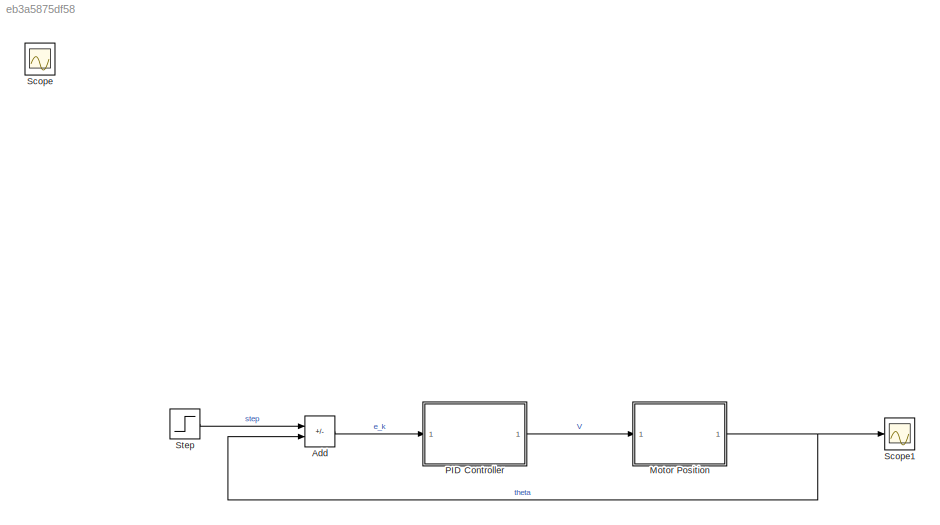
MODEL slx_eb3a5875df58
KIND model
CONFIG AbsTol = auto
CONFIG EnableMultiTasking = off
CONFIG FixedStep = auto
CONFIG MaxStep = auto
CONFIG MinStep = auto
CONFIG RelTol = 1e-3
CONFIG SampleTimeConstraint = Unconstrained
CONFIG SolverName = VariableStepAuto
CONFIG StartTime = 0.0
CONFIG StopTime = 0.2
BLOCK [Sum] Add
  IconShape = rectangular
  Inputs = +-
  Ports = [2, 1]
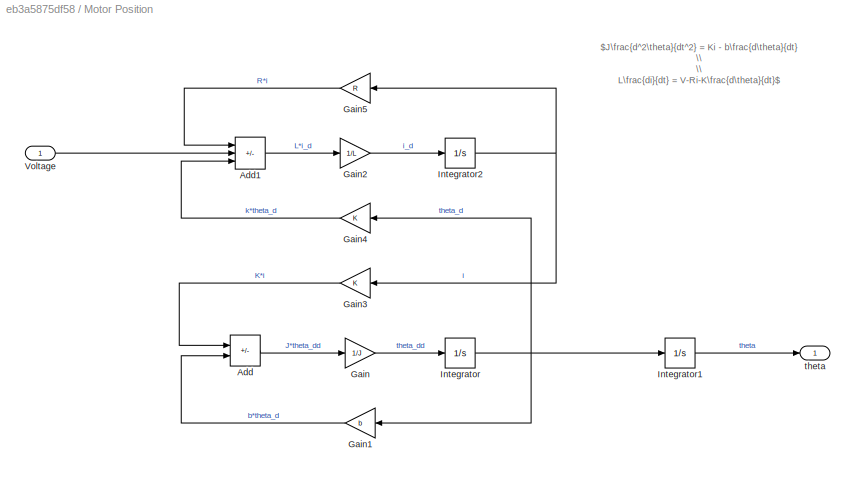
BLOCK [SubSystem] Motor Position
  Ports = [1, 1]
  RequestExecContextInheritance = off
BLOCK [Sum] Motor Position/Add
  IconShape = rectangular
  Inputs = +-
  Ports = [2, 1]
BLOCK [Sum] Motor Position/Add1
  IconShape = rectangular
  Inputs = -+-
  Ports = [3, 1]
BLOCK [Gain] Motor Position/Gain
  Gain = 1/J
BLOCK [Gain] Motor Position/Gain1
  Gain = b
  NameLocation = top
BLOCK [Gain] Motor Position/Gain2
  Gain = 1/L
BLOCK [Gain] Motor Position/Gain3
  Gain = K
  NameLocation = top
BLOCK [Gain] Motor Position/Gain4
  Gain = K
  NameLocation = top
BLOCK [Gain] Motor Position/Gain5
  Gain = R
  NameLocation = top
BLOCK [Integrator] Motor Position/Integrator
  Ports = [1, 1]
BLOCK [Integrator] Motor Position/Integrator1
  Ports = [1, 1]
BLOCK [Integrator] Motor Position/Integrator2
  Ports = [1, 1]
BLOCK [Inport] Motor Position/Voltage
BLOCK [Outport] Motor Position/theta
BLOCK [ModelReference] PID Controller
  ModelNameDialog = PID_Controller
  ModelReferenceVersion = 1.10
  Ports = [1, 1]
BLOCK [Scope] Scope
  Floating = off
  IOType = viewer
  NumInputPorts = 1
  Ports = []
  ScopeSpecificationString = Simulink.scopes.TimeScopeBlockCfg('CurrentConfiguration', extmgr.ConfigurationSet(extmgr.Configuration('Core','General UI',true),extmgr.Configuration('Core','Source UI',true),extmgr.Configuration('Sources','WiredSimulink',true),extmgr.Configuration('Visuals','Time Domain',true,'SerializedDisplays',{struct('MinYLimReal','1.37037','MaxYLimReal','1.41064','YLabelReal','','MinYLimMag','1.37037','MaxYL...<+1366ch>
BLOCK [Scope] Scope1
  Floating = off
  NumInputPorts = 1
  Ports = [1]
  ScopeSpecificationString = Simulink.scopes.TimeScopeBlockCfg('CurrentConfiguration', extmgr.ConfigurationSet(extmgr.Configuration('Core','General UI',true),extmgr.Configuration('Core','Source UI',true),extmgr.Configuration('Sources','WiredSimulink',true,'DataLoggingVariableName','ScopeData1'),extmgr.Configuration('Visuals','Time Domain',true,'SerializedDisplays',{struct('MinYLimReal','-0.14515','MaxYLimReal','1.30637','YLab...<+1415ch>
BLOCK [Step] Step
  SampleTime = 0
  Time = 0
ANNOTATION Motor Position: $J\frac{d^2\theta}{dt^2} = Ki - b\frac{d\theta}{dt} \\ \\ L\frac{di}{dt} = V-Ri-K\frac{d\theta}{dt}$
LINE Add:1 -> PID Controller:1
LINE Motor Position/Add1:1 -> Motor Position/Gain2:1
LINE Motor Position/Add:1 -> Motor Position/Gain:1
LINE Motor Position/Gain1:1 -> Motor Position/Add:2
LINE Motor Position/Gain2:1 -> Motor Position/Integrator2:1
LINE Motor Position/Gain3:1 -> Motor Position/Add:1
LINE Motor Position/Gain4:1 -> Motor Position/Add1:3
LINE Motor Position/Gain5:1 -> Motor Position/Add1:1
LINE Motor Position/Gain:1 -> Motor Position/Integrator:1
LINE Motor Position/Integrator1:1 -> Motor Position/theta:1
NET Motor Position/Integrator2:1 -> Motor Position/Gain3:1, Motor Position/Gain5:1
NET Motor Position/Integrator:1 -> Motor Position/Gain1:1, Motor Position/Gain4:1, Motor Position/Integrator1:1
LINE Motor Position/Voltage:1 -> Motor Position/Add1:2
NET Motor Position:1 -> Add:2, Scope1:1
LINE PID Controller:1 -> Motor Position:1
LINE Step:1 -> Add:1
note: NET lines group one-source signal fan-out (src -> all destinations, sorted); 1:1 wires keep LINE
